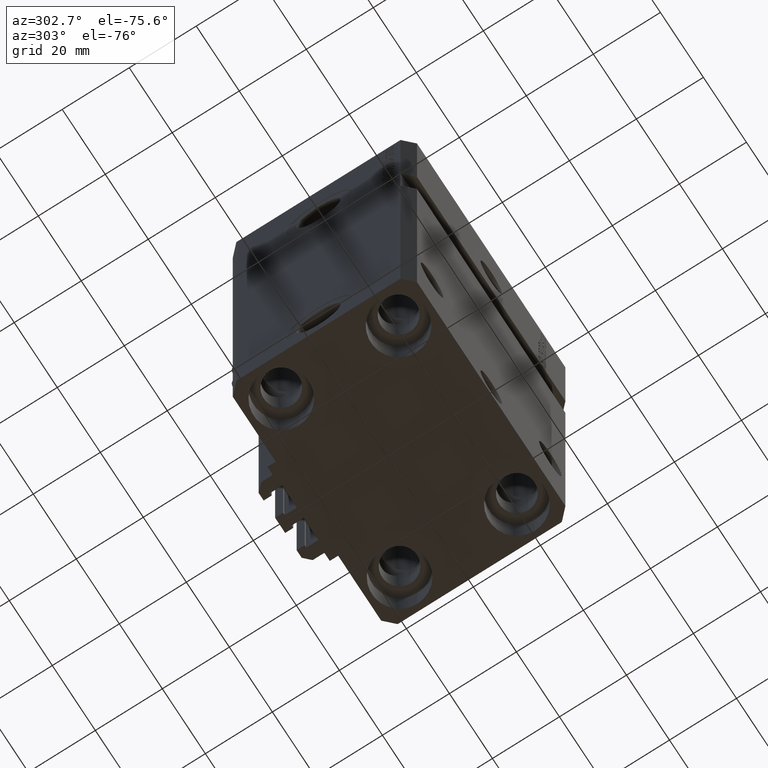
[diagram: clean part render]
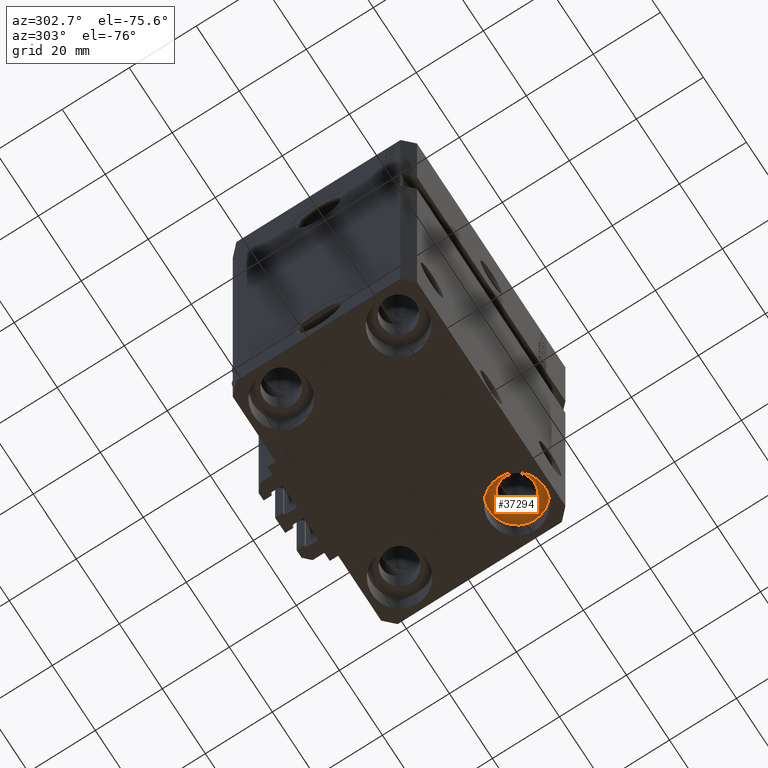
[diagram: same view with one face highlighted and labeled with its STEP entity id]
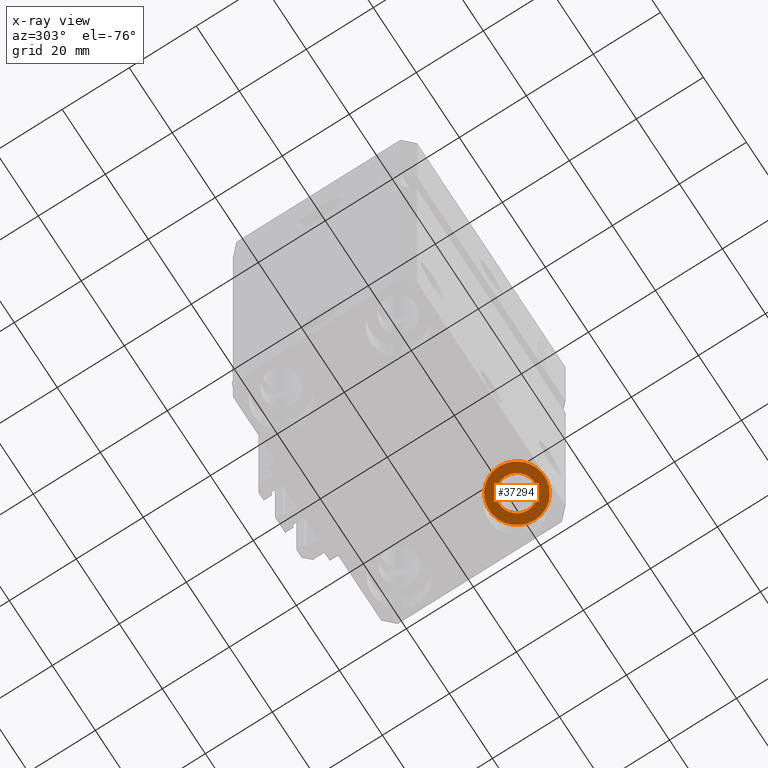
[diagram: x-ray of the same camera — body ghosted, the highlighted face saturated]
A machine part, auxiliary view. The second image highlights one B-rep face of the part: STEP entity #37294.
The next image is the same camera in x-ray: the body ghosted, the highlighted face saturated — about 0% of this face is hidden behind the body in this view.
In plain terms, the highlighted planar face has unit normal (0, 0, -1).
Its self-contained STEP definition (entity closure, byte-faithful):
#147 = DIRECTION ( 'NONE',  ( -0.000000000000000000, -0.000000000000000000, 1.000000000000000000 ) ) ;
#1277 = EDGE_CURVE ( 'NONE', #2895, #15775, #13410, .T. ) ;
#2002 = CARTESIAN_POINT ( 'NONE',  ( 27.50000000000000355, -17.50000000000000000, -129.0000000000000000 ) ) ;
#2152 = FACE_OUTER_BOUND ( 'NONE', #9718, .T. ) ;
#2895 = VERTEX_POINT ( 'NONE', #44896 ) ;
#3774 = DIRECTION ( 'NONE',  ( 1.000000000000000000, 0.000000000000000000, 0.000000000000000000 ) ) ;
#4797 = VERTEX_POINT ( 'NONE', #15622 ) ;
#5549 = FACE_BOUND ( 'NONE', #12093, .T. ) ;
#5706 = EDGE_CURVE ( 'NONE', #15775, #2895, #15101, .T. ) ;
#8348 = ORIENTED_EDGE ( 'NONE', *, *, #19580, .F. ) ;
#9718 = EDGE_LOOP ( 'NONE', ( #25654, #47059 ) ) ;
#11723 = ORIENTED_EDGE ( 'NONE', *, *, #31231, .F. ) ;
#12093 = EDGE_LOOP ( 'NONE', ( #11723, #8348 ) ) ;
#13068 = CARTESIAN_POINT ( 'NONE',  ( 27.50000000000000355, -17.50000000000000000, -129.0000000000000000 ) ) ;
#13410 = CIRCLE ( 'NONE', #16522, 8.250000000000000000 ) ;
#13539 = AXIS2_PLACEMENT_3D ( 'NONE', #13068, #19850, #46016 ) ;
#13638 = CIRCLE ( 'NONE', #46142, 5.249999999999997335 ) ;
#15101 = CIRCLE ( 'NONE', #13539, 8.250000000000000000 ) ;
#15622 = CARTESIAN_POINT ( 'NONE',  ( 22.25000000000000711, -17.50000000000000000, -129.0000000000000000 ) ) ;
#15775 = VERTEX_POINT ( 'NONE', #28180 ) ;
#16522 = AXIS2_PLACEMENT_3D ( 'NONE', #19029, #147, #3774 ) ;
#18619 = CARTESIAN_POINT ( 'NONE',  ( 27.50000000000000355, -17.50000000000000000, -129.0000000000000000 ) ) ;
#19029 = CARTESIAN_POINT ( 'NONE',  ( 27.50000000000000355, -17.50000000000000000, -129.0000000000000000 ) ) ;
#19580 = EDGE_CURVE ( 'NONE', #4797, #23285, #13638, .T. ) ;
#19850 = DIRECTION ( 'NONE',  ( -0.000000000000000000, -0.000000000000000000, 1.000000000000000000 ) ) ;
#20122 = AXIS2_PLACEMENT_3D ( 'NONE', #2002, #30815, #26959 ) ;
#23285 = VERTEX_POINT ( 'NONE', #42349 ) ;
#24664 = DIRECTION ( 'NONE',  ( 1.000000000000000000, 0.000000000000000000, 0.000000000000000000 ) ) ;
#25654 = ORIENTED_EDGE ( 'NONE', *, *, #1277, .F. ) ;
#26959 = DIRECTION ( 'NONE',  ( -1.000000000000000000, 0.000000000000000000, 0.000000000000000000 ) ) ;
#28180 = CARTESIAN_POINT ( 'NONE',  ( 35.75000000000000711, -17.50000000000000000, -129.0000000000000000 ) ) ;
#28526 = PLANE ( 'NONE',  #40791 ) ;
#30815 = DIRECTION ( 'NONE',  ( 0.000000000000000000, 0.000000000000000000, -1.000000000000000000 ) ) ;
#31231 = EDGE_CURVE ( 'NONE', #23285, #4797, #41010, .T. ) ;
#33387 = DIRECTION ( 'NONE',  ( -1.000000000000000000, 0.000000000000000000, 0.000000000000000000 ) ) ;
#37294 = ADVANCED_FACE ( 'NONE', ( #5549, #2152 ), #28526, .T. ) ;
#39197 = DIRECTION ( 'NONE',  ( 0.000000000000000000, 0.000000000000000000, -1.000000000000000000 ) ) ;
#40791 = AXIS2_PLACEMENT_3D ( 'NONE', #43303, #39197, #24664 ) ;
#41010 = CIRCLE ( 'NONE', #20122, 5.249999999999997335 ) ;
#42349 = CARTESIAN_POINT ( 'NONE',  ( 32.75000000000000000, -17.50000000000000000, -129.0000000000000000 ) ) ;
#43303 = CARTESIAN_POINT ( 'NONE',  ( 27.50000000000000355, -17.50000000000000000, -129.0000000000000000 ) ) ;
#44896 = CARTESIAN_POINT ( 'NONE',  ( 19.25000000000000000, -17.50000000000000000, -129.0000000000000000 ) ) ;
#46016 = DIRECTION ( 'NONE',  ( 1.000000000000000000, 0.000000000000000000, 0.000000000000000000 ) ) ;
#46142 = AXIS2_PLACEMENT_3D ( 'NONE', #18619, #47929, #33387 ) ;
#47059 = ORIENTED_EDGE ( 'NONE', *, *, #5706, .F. ) ;
#47929 = DIRECTION ( 'NONE',  ( 0.000000000000000000, 0.000000000000000000, -1.000000000000000000 ) ) ;